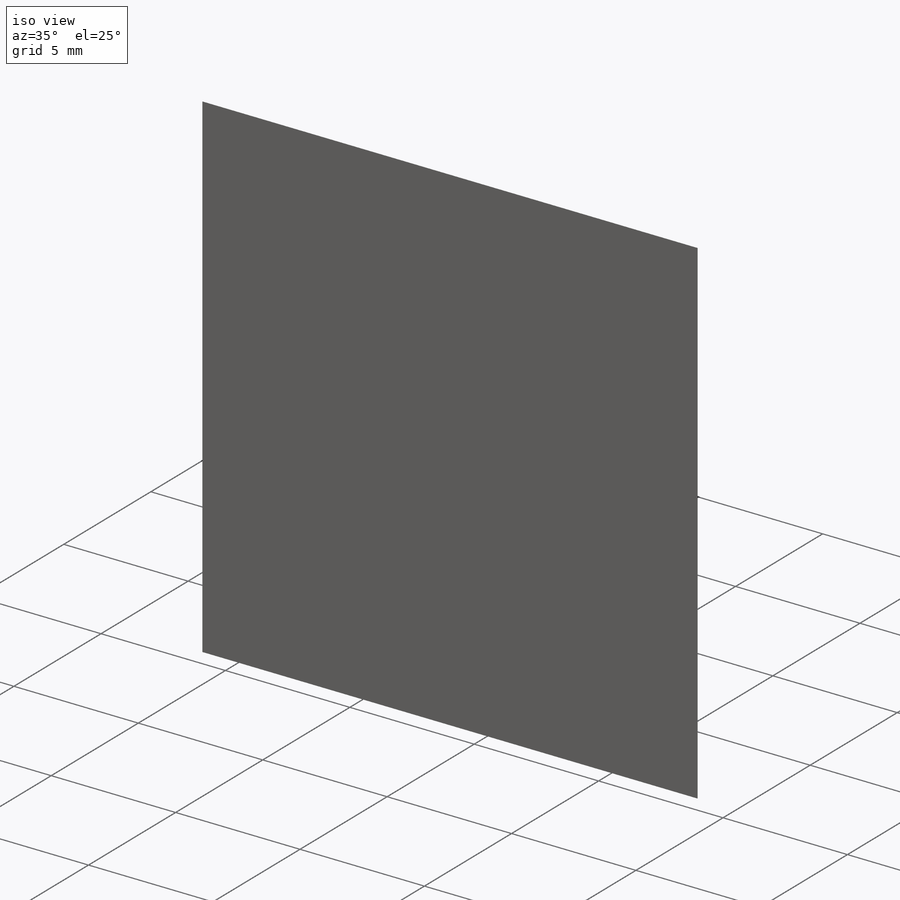
[diagram: iso view]
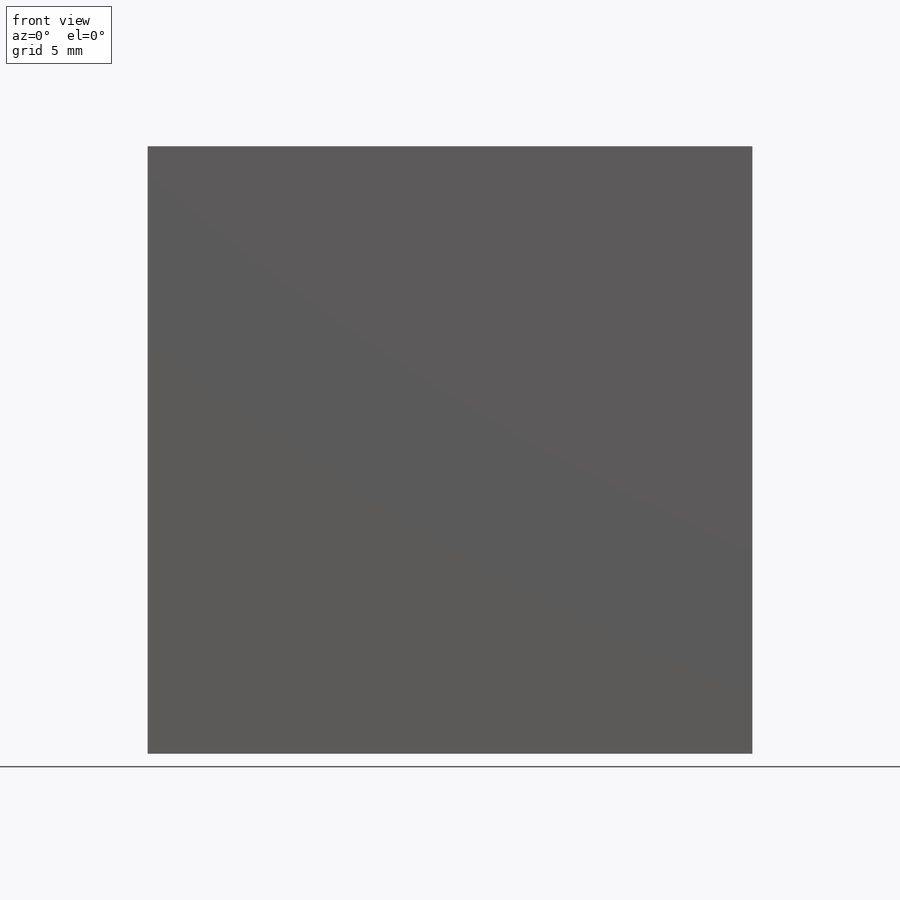
[diagram: front view]
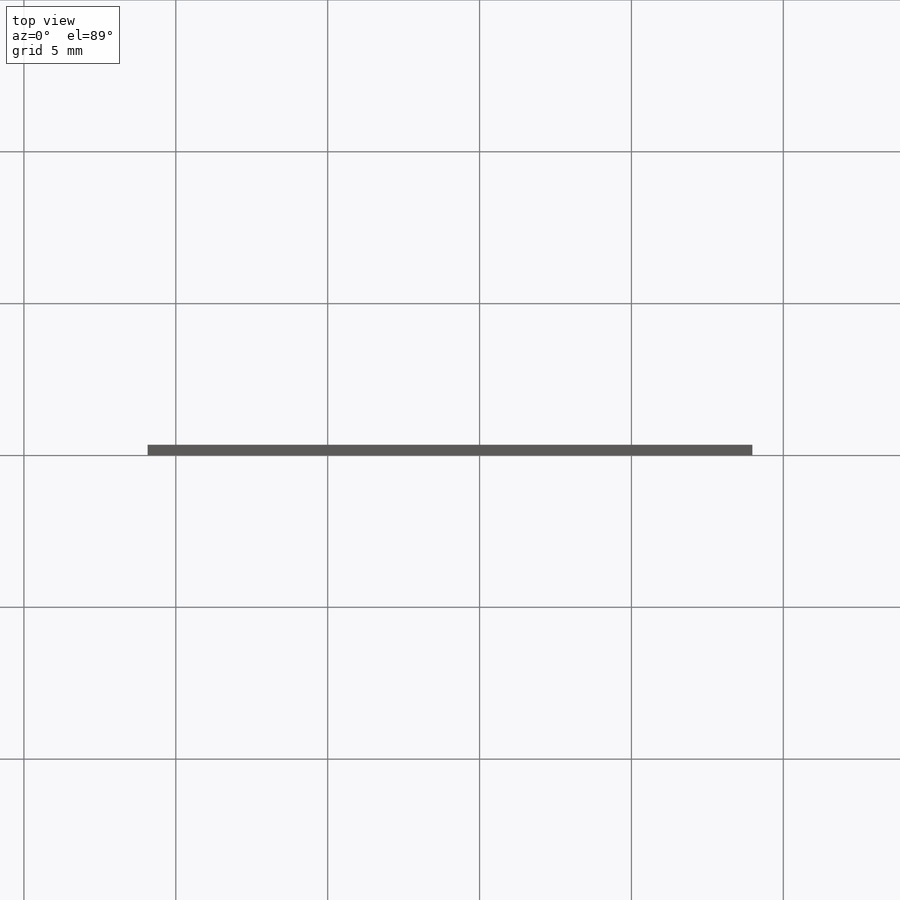
[diagram: top view]
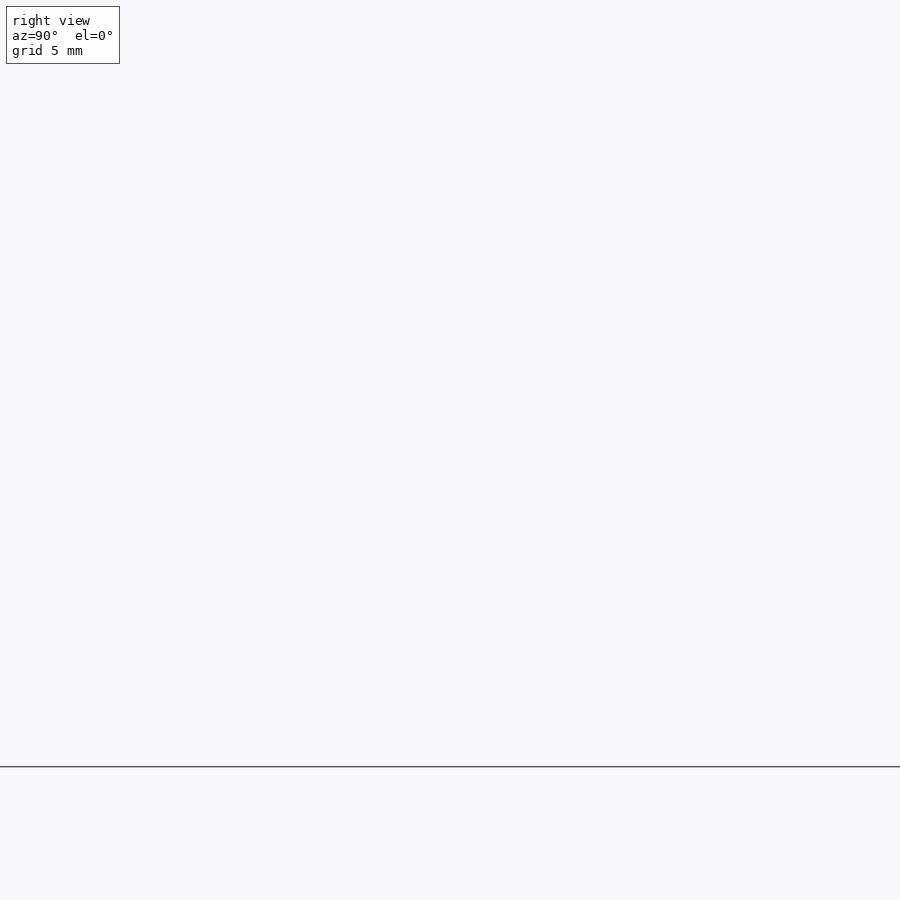
[diagram: right view]
SOLIDWORKS PART (.sldprt)
format: sldprt  version: not decoded by parser v0  size: 114,176 bytes
history: native  units: mm
features: extrude x8, plane x4, sketch x2, material x1 (+14 scaffold rows collapsed)
feature tree (29):
  scaffold x14  (default folders/planes/origin — collapsed)
  material  "Стекло"
  plane  "Спереди"
  plane  "Сверху"
  plane  "Справа"
  plane  "Плоскость1"  Offset=10mm
  sketch  "Эскиз2"
  sketch  "Эскиз1"  dims[c1.D1=~9.216824mm c2.D1=53.0deg c2.D2=15.9mm c2.D3=17.07mm]
  extrude  "Бобышка-Вытянуть1"  Depth=20mm OpticsFace_Name=0mm
  extrude  "OpticsFace_Number"  Depth=0mm Surface=0mm Material_Int=0mm Material_Ext=0mm
  extrude  "Source_Number"  Depth=0mm Surface=0mm Material_Int=0mm Material_Ext=0mm
  extrude  "Source_Number"  Depth=0mm Surface=0mm Material_Int=0mm Material_Ext=0mm
  extrude  "Source_Number"  Depth=0mm Surface=0mm Material_Int=0mm Material_Ext=0mm
  extrude  "Source_Number"  Depth=0mm Surface=0mm Material_Int=0mm Material_Ext=0mm
  extrude  "Source_Number"  Depth=0mm Surface=0mm Material_Int=0mm Material_Ext=0mm
  extrude  "Source_Number"  [1 undecoded]
decode coverage: 8 of 10 modeling features carry decoded parameters
note: ~ marks probable driven/reference dimensions
note: 1 parameter value undecoded
note: suppression state not decoded; provenance and decode notes live in map.json
